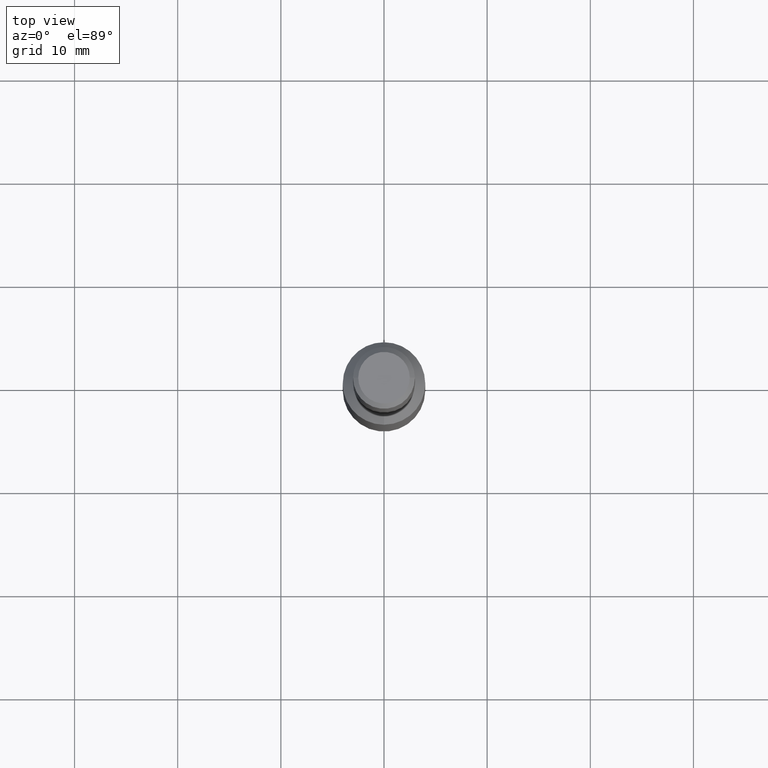
[diagram: clean part render]
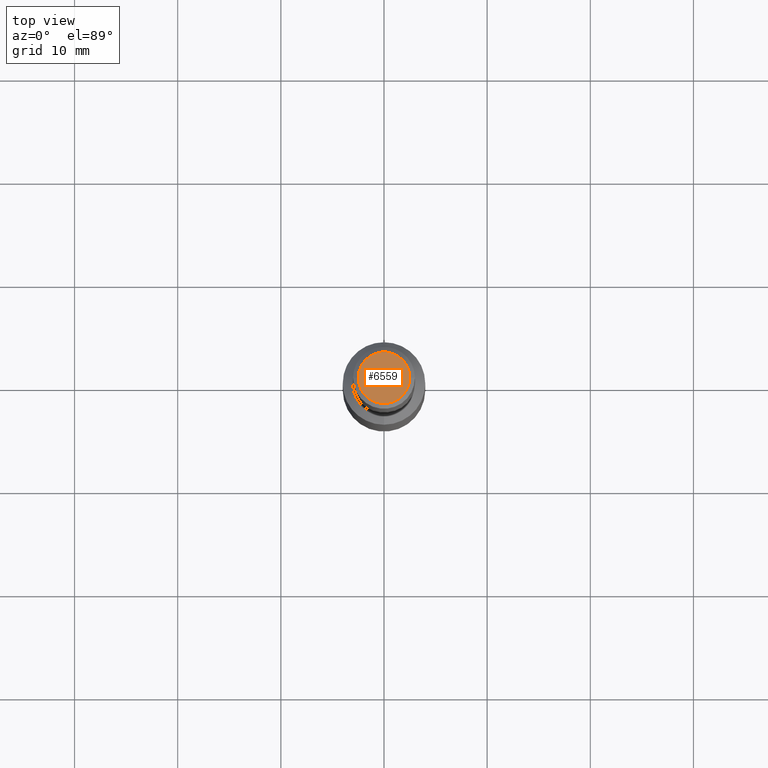
[diagram: same view with one face highlighted and labeled with its STEP entity id]
A machine part, top view. The second image highlights one B-rep face of the part: STEP entity #6559.
In plain terms, the highlighted planar face has unit normal (0, 0, 1).
Its self-contained STEP definition (entity closure, byte-faithful):
#191 = AXIS2_PLACEMENT_3D ( 'NONE', #11744, #5697, #6711 ) ;
#965 = CARTESIAN_POINT ( 'NONE',  ( -2.499999999999988500, 0.0000000000000000000, 70.00000000000000000 ) ) ;
#1204 = EDGE_CURVE ( 'NONE', #11227, #12595, #8553, .T. ) ;
#2110 = ORIENTED_EDGE ( 'NONE', *, *, #1204, .T. ) ;
#3423 = CARTESIAN_POINT ( 'NONE',  ( 2.499999999999988500, 3.367778697655214100E-016, 70.00000000000000000 ) ) ;
#4428 = EDGE_CURVE ( 'NONE', #12595, #11227, #9695, .T. ) ;
#5697 = DIRECTION ( 'NONE',  ( 0.0000000000000000000, 0.0000000000000000000, 1.000000000000000000 ) ) ;
#6374 = AXIS2_PLACEMENT_3D ( 'NONE', #10078, #11076, #9183 ) ;
#6559 = ADVANCED_FACE ( 'NONE', ( #9011 ), #13133, .T. ) ;
#6711 = DIRECTION ( 'NONE',  ( 1.000000000000000000, 0.0000000000000000000, 0.0000000000000000000 ) ) ;
#6729 = CARTESIAN_POINT ( 'NONE',  ( 0.0000000000000000000, 0.0000000000000000000, 70.00000000000000000 ) ) ;
#8553 = CIRCLE ( 'NONE', #191, 2.499999999999988500 ) ;
#8784 = DIRECTION ( 'NONE',  ( 1.000000000000000000, 0.0000000000000000000, 0.0000000000000000000 ) ) ;
#9007 = ORIENTED_EDGE ( 'NONE', *, *, #4428, .T. ) ;
#9011 = FACE_OUTER_BOUND ( 'NONE', #12387, .T. ) ;
#9183 = DIRECTION ( 'NONE',  ( 1.000000000000000000, 0.0000000000000000000, -0.0000000000000000000 ) ) ;
#9695 = CIRCLE ( 'NONE', #11423, 2.499999999999988500 ) ;
#10078 = CARTESIAN_POINT ( 'NONE',  ( 0.0000000000000000000, 0.0000000000000000000, 70.00000000000000000 ) ) ;
#11076 = DIRECTION ( 'NONE',  ( 0.0000000000000000000, 0.0000000000000000000, 1.000000000000000000 ) ) ;
#11227 = VERTEX_POINT ( 'NONE', #3423 ) ;
#11423 = AXIS2_PLACEMENT_3D ( 'NONE', #6729, #12732, #8784 ) ;
#11744 = CARTESIAN_POINT ( 'NONE',  ( 0.0000000000000000000, 0.0000000000000000000, 70.00000000000000000 ) ) ;
#12387 = EDGE_LOOP ( 'NONE', ( #9007, #2110 ) ) ;
#12595 = VERTEX_POINT ( 'NONE', #965 ) ;
#12732 = DIRECTION ( 'NONE',  ( 0.0000000000000000000, 0.0000000000000000000, 1.000000000000000000 ) ) ;
#13133 = PLANE ( 'NONE',  #6374 ) ;